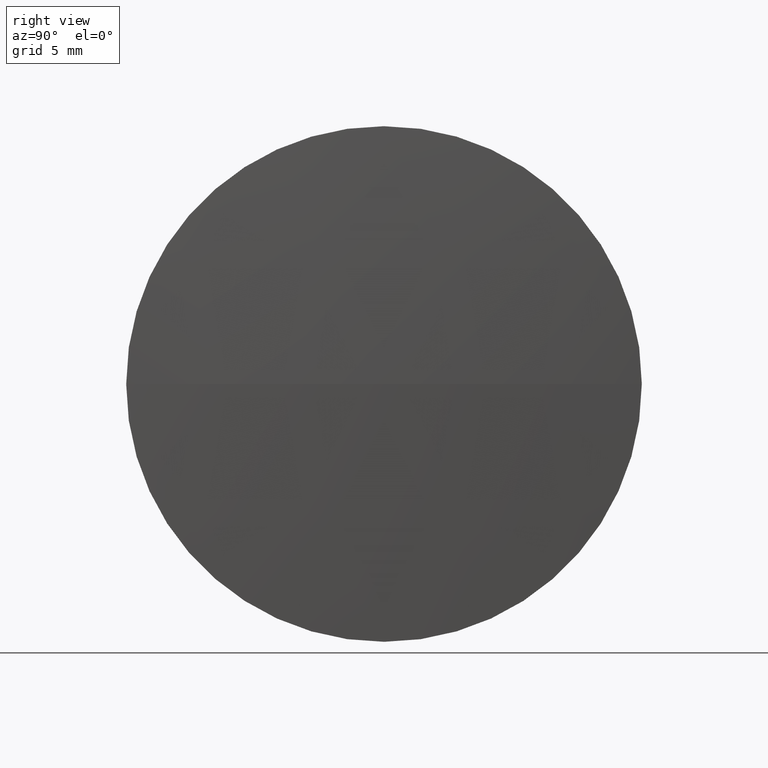
[diagram: clean part render]
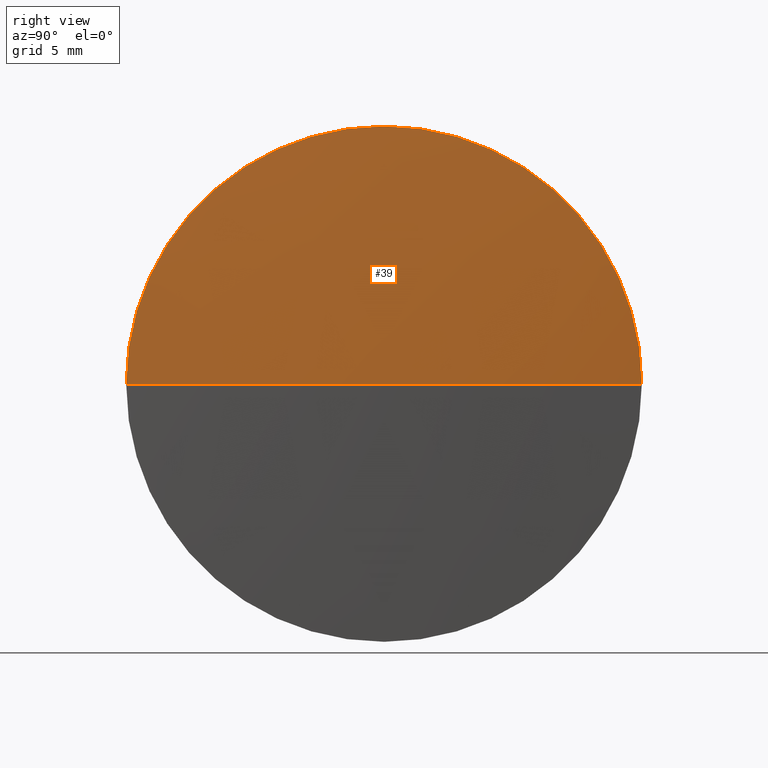
[diagram: same view with one face highlighted and labeled with its STEP entity id]
A machine part, right view. The second image highlights one B-rep face of the part: STEP entity #39.
In plain terms, the highlighted spherical surface has radius 201.66 mm.
Its self-contained STEP definition (entity closure, byte-faithful):
#1 = AXIS2_PLACEMENT_3D ( 'NONE', #160, #211, #30 ) ;
#30 = DIRECTION ( 'NONE',  ( -1.000000000000000000, 0.0000000000000000000, 0.0000000000000000000 ) ) ;
#34 = CARTESIAN_POINT ( 'NONE',  ( 87.85816920323401300, 48.61611302318509300, 0.0000000000000000000 ) ) ;
#36 = VERTEX_POINT ( 'NONE', #114 ) ;
#39 = ADVANCED_FACE ( 'NONE', ( #96 ), #90, .T. ) ;
#45 = EDGE_CURVE ( 'NONE', #296, #36, #274, .T. ) ;
#48 = DIRECTION ( 'NONE',  ( 0.0000000000000000000, -1.224646799147353200E-016, 1.000000000000000000 ) ) ;
#63 = DIRECTION ( 'NONE',  ( -1.000000000000000000, -0.0000000000000000000, -0.0000000000000000000 ) ) ;
#65 = EDGE_CURVE ( 'NONE', #239, #296, #152, .T. ) ;
#80 = CIRCLE ( 'NONE', #248, 12.69999999999999600 ) ;
#87 = DIRECTION ( 'NONE',  ( 0.0000000000000000000, 0.0000000000000000000, 1.000000000000000000 ) ) ;
#90 = SPHERICAL_SURFACE ( 'NONE', #207, 201.6595428629199500 ) ;
#96 = FACE_OUTER_BOUND ( 'NONE', #118, .T. ) ;
#112 = AXIS2_PLACEMENT_3D ( 'NONE', #202, #48, #284 ) ;
#114 = CARTESIAN_POINT ( 'NONE',  ( 87.45786520323396500, 48.61611302318478100, 12.69999999999999600 ) ) ;
#115 = DIRECTION ( 'NONE',  ( -1.000000000000000000, -0.0000000000000000000, -0.0000000000000000000 ) ) ;
#116 = CARTESIAN_POINT ( 'NONE',  ( 87.45786520323395100, 61.31611302318497500, 1.555301434917121700E-015 ) ) ;
#118 = EDGE_LOOP ( 'NONE', ( #225, #198, #309, #173 ) ) ;
#126 = VERTEX_POINT ( 'NONE', #116 ) ;
#140 = CARTESIAN_POINT ( 'NONE',  ( -113.8013736596859400, 48.61611302318510800, 0.0000000000000000000 ) ) ;
#144 = CIRCLE ( 'NONE', #112, 201.6595428629199500 ) ;
#152 = CIRCLE ( 'NONE', #1, 201.6595428629199200 ) ;
#160 = CARTESIAN_POINT ( 'NONE',  ( -113.8013736596859400, 48.61611302318510800, 0.0000000000000000000 ) ) ;
#173 = ORIENTED_EDGE ( 'NONE', *, *, #45, .F. ) ;
#183 = CARTESIAN_POINT ( 'NONE',  ( 87.45786520323396500, 48.61611302318478100, 0.0000000000000000000 ) ) ;
#189 = DIRECTION ( 'NONE',  ( 0.0000000000000000000, 0.0000000000000000000, 1.000000000000000000 ) ) ;
#192 = CARTESIAN_POINT ( 'NONE',  ( 87.45786520323396500, 48.61611302318478100, 0.0000000000000000000 ) ) ;
#198 = ORIENTED_EDGE ( 'NONE', *, *, #307, .T. ) ;
#202 = CARTESIAN_POINT ( 'NONE',  ( -113.8013736596859400, 48.61611302318510800, 0.0000000000000000000 ) ) ;
#207 = AXIS2_PLACEMENT_3D ( 'NONE', #140, #267, #215 ) ;
#211 = DIRECTION ( 'NONE',  ( 0.0000000000000000000, 0.0000000000000000000, -1.000000000000000000 ) ) ;
#215 = DIRECTION ( 'NONE',  ( 0.0000000000000000000, -1.000000000000000000, 0.0000000000000000000 ) ) ;
#225 = ORIENTED_EDGE ( 'NONE', *, *, #65, .F. ) ;
#239 = VERTEX_POINT ( 'NONE', #34 ) ;
#248 = AXIS2_PLACEMENT_3D ( 'NONE', #192, #63, #189 ) ;
#254 = EDGE_CURVE ( 'NONE', #36, #126, #80, .T. ) ;
#267 = DIRECTION ( 'NONE',  ( 0.0000000000000000000, 0.0000000000000000000, 1.000000000000000000 ) ) ;
#274 = CIRCLE ( 'NONE', #325, 12.69999999999999600 ) ;
#284 = DIRECTION ( 'NONE',  ( 0.0000000000000000000, -1.000000000000000000, -1.224646799147353200E-016 ) ) ;
#296 = VERTEX_POINT ( 'NONE', #312 ) ;
#307 = EDGE_CURVE ( 'NONE', #239, #126, #144, .T. ) ;
#309 = ORIENTED_EDGE ( 'NONE', *, *, #254, .F. ) ;
#312 = CARTESIAN_POINT ( 'NONE',  ( 87.45786520323395100, 35.91611302318492000, 0.0000000000000000000 ) ) ;
#325 = AXIS2_PLACEMENT_3D ( 'NONE', #183, #115, #87 ) ;